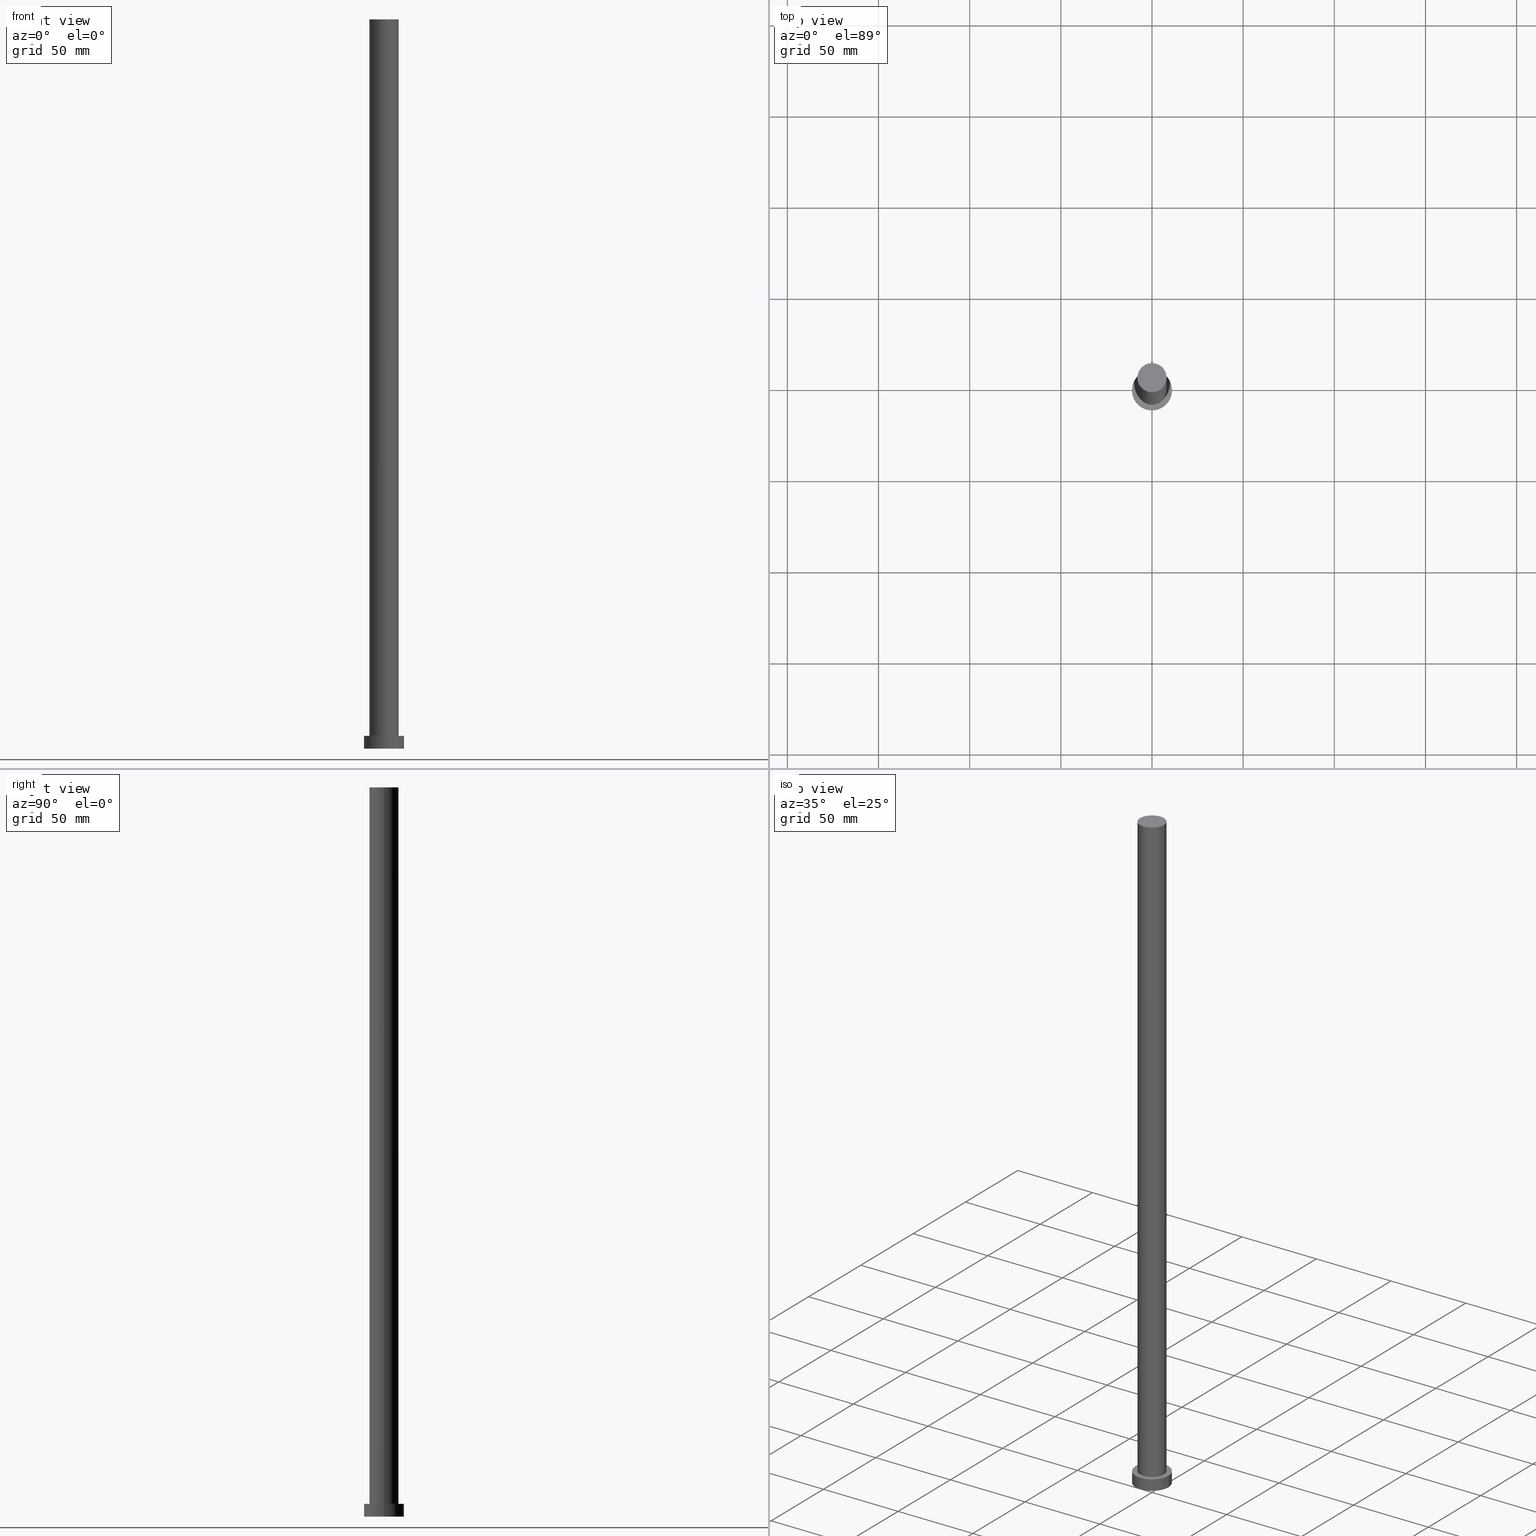
[diagram: canonical four-view strip — front | top / right | iso, engineering-drawing reading convention]
A machine part, canonical four-view strip (front | top / right | iso — engineering-drawing reading convention). The complete STEP part file that produces these views, byte-faithful:
ISO-10303-21;
HEADER;
FILE_DESCRIPTION (( 'STEP AP203' ),
    '1' );
FILE_NAME ('4e57.STEP',
    '2023-02-12T10:43:27',
    ( '' ),
    ( '' ),
    'SwSTEP 2.0',
    'SolidWorks 2019',
    '' );
FILE_SCHEMA (( 'CONFIG_CONTROL_DESIGN' ));
ENDSEC;

DATA;
#1 = DIRECTION ( 'NONE',  ( -0.000000000000000000, -0.000000000000000000, -1.000000000000000000 ) ) ;
#2 = MANIFOLD_SOLID_BREP ( 'P�idat vysunut�m3', #87 ) ;
#3 = CC_DESIGN_DATE_AND_TIME_ASSIGNMENT ( #65, #198, ( #118 ) ) ;
#4 = DIRECTION ( 'NONE',  ( 1.000000000000000000, 0.000000000000000000, -0.000000000000000000 ) ) ;
#5 = PLANE ( 'NONE',  #209 ) ;
#6 = FACE_OUTER_BOUND ( 'NONE', #170, .T. ) ;
#7 = FACE_OUTER_BOUND ( 'NONE', #68, .T. ) ;
#8 = APPROVAL_PERSON_ORGANIZATION ( #145, #28, #130 ) ;
#9 = PRODUCT_DEFINITION_FORMATION_WITH_SPECIFIED_SOURCE ( 'LIBOVOLN�', '', #194, .NOT_KNOWN. ) ;
#10 = VECTOR ( 'NONE', #137, 1000.000000000000000 ) ;
#11 = VERTEX_POINT ( 'NONE', #50 ) ;
#12 = CC_DESIGN_PERSON_AND_ORGANIZATION_ASSIGNMENT ( #160, #49, ( #9 ) ) ;
#13 = VERTEX_POINT ( 'NONE', #33 ) ;
#14 = PLANE ( 'NONE',  #219 ) ;
#15 = DIRECTION ( 'NONE',  ( 0.000000000000000000, 0.000000000000000000, 1.000000000000000000 ) ) ;
#16 = DIRECTION ( 'NONE',  ( -0.000000000000000000, -0.000000000000000000, -1.000000000000000000 ) ) ;
#17 = CIRCLE ( 'NONE', #159, 8.000000000000000000 ) ;
#18 = CYLINDRICAL_SURFACE ( 'NONE', #46, 11.00000000000000000 ) ;
#19 = APPLICATION_CONTEXT ( 'configuration controlled 3d designs of mechanical parts and assemblies' ) ;
#20 = DIRECTION ( 'NONE',  ( -0.000000000000000000, -0.000000000000000000, -1.000000000000000000 ) ) ;
#21 = ADVANCED_FACE ( 'NONE', ( #96, #182 ), #171, .T. ) ;
#22 = CARTESIAN_POINT ( 'NONE',  ( 0.000000000000000000, 0.000000000000000000, 400.0000000000000000 ) ) ;
#23 = DIRECTION ( 'NONE',  ( 1.000000000000000000, 0.000000000000000000, 0.000000000000000000 ) ) ;
#24 = ORIENTED_EDGE ( 'NONE', *, *, #75, .F. ) ;
#25 = APPROVAL_STATUS ( 'not_yet_approved' ) ;
#26 = CC_DESIGN_APPROVAL ( #79, ( #118 ) ) ;
#27 = ORIENTED_EDGE ( 'NONE', *, *, #162, .T. ) ;
#28 = APPROVAL ( #224, 'NEUR�EN�' ) ;
#29 = EDGE_LOOP ( 'NONE', ( #48, #73, #246, #90 ) ) ;
#30 = LOCAL_TIME ( 11, 43, 27.00000000000000000, #84 ) ;
#31 = CC_DESIGN_PERSON_AND_ORGANIZATION_ASSIGNMENT ( #248, #203, ( #9 ) ) ;
#32 = EDGE_CURVE ( 'NONE', #167, #109, #146, .T. ) ;
#33 = CARTESIAN_POINT ( 'NONE',  ( 11.00000000000000000, 1.347111479062088405E-15, 0.000000000000000000 ) ) ;
#34 = CARTESIAN_POINT ( 'NONE',  ( -11.00000000000000000, 0.000000000000000000, 7.000000000000000000 ) ) ;
#35 = AXIS2_PLACEMENT_3D ( 'NONE', #120, #101, #172 ) ;
#36 = DIRECTION ( 'NONE',  ( 0.000000000000000000, 0.000000000000000000, 1.000000000000000000 ) ) ;
#37 = CARTESIAN_POINT ( 'NONE',  ( 0.000000000000000000, 0.000000000000000000, 0.000000000000000000 ) ) ;
#38 = CARTESIAN_POINT ( 'NONE',  ( -11.00000000000000000, 0.000000000000000000, 0.000000000000000000 ) ) ;
#39 = CARTESIAN_POINT ( 'NONE',  ( 0.000000000000000000, 0.000000000000000000, 7.000000000000000000 ) ) ;
#40 = CALENDAR_DATE ( 2023, 12, 2 ) ;
#41 = PRODUCT_DEFINITION_SHAPE ( 'NONE', 'NONE',  #118 ) ;
#42 = PERSON_AND_ORGANIZATION ( #115, #142 ) ;
#43 =( NAMED_UNIT ( * ) SI_UNIT ( $, .STERADIAN. ) SOLID_ANGLE_UNIT ( ) );
#44 = CYLINDRICAL_SURFACE ( 'NONE', #91, 11.00000000000000000 ) ;
#45 = DATE_AND_TIME ( #94, #55 ) ;
#46 = AXIS2_PLACEMENT_3D ( 'NONE', #232, #20, #122 ) ;
#47 = APPROVAL_PERSON_ORGANIZATION ( #42, #140, #124 ) ;
#48 = ORIENTED_EDGE ( 'NONE', *, *, #151, .F. ) ;
#49 = PERSON_AND_ORGANIZATION_ROLE ( 'creator' ) ;
#50 = CARTESIAN_POINT ( 'NONE',  ( -8.000000000000000000, 0.000000000000000000, 7.000000000000000000 ) ) ;
#51 = AXIS2_PLACEMENT_3D ( 'NONE', #155, #1, #76 ) ;
#52 = CC_DESIGN_SECURITY_CLASSIFICATION ( #136, ( #9 ) ) ;
#53 = FACE_OUTER_BOUND ( 'NONE', #110, .T. ) ;
#54 = DIRECTION ( 'NONE',  ( 1.000000000000000000, 0.000000000000000000, 0.000000000000000000 ) ) ;
#55 = LOCAL_TIME ( 11, 43, 27.00000000000000000, #181 ) ;
#56 = CARTESIAN_POINT ( 'NONE',  ( 11.00000000000000000, 1.347111479062088405E-15, 7.000000000000000000 ) ) ;
#57 = CARTESIAN_POINT ( 'NONE',  ( 0.000000000000000000, 0.000000000000000000, 7.000000000000000000 ) ) ;
#58 = EDGE_CURVE ( 'NONE', #250, #114, #166, .T. ) ;
#59 = ADVANCED_FACE ( 'NONE', ( #117 ), #102, .T. ) ;
#60 = CARTESIAN_POINT ( 'NONE',  ( 0.000000000000000000, 0.000000000000000000, 0.000000000000000000 ) ) ;
#61 = PERSON_AND_ORGANIZATION_ROLE ( 'design_owner' ) ;
#62 = CARTESIAN_POINT ( 'NONE',  ( 8.000000000000000000, 9.797174393178825657E-16, 400.0000000000000000 ) ) ;
#63 = ORIENTED_EDGE ( 'NONE', *, *, #58, .T. ) ;
#64 = PERSON_AND_ORGANIZATION ( #115, #142 ) ;
#65 = DATE_AND_TIME ( #127, #83 ) ;
#66 = ADVANCED_BREP_SHAPE_REPRESENTATION ( '4e57', ( #2, #193 ), #100 ) ;
#67 = CARTESIAN_POINT ( 'NONE',  ( 0.000000000000000000, 0.000000000000000000, 7.000000000000000000 ) ) ;
#68 = EDGE_LOOP ( 'NONE', ( #113, #63 ) ) ;
#69 = VECTOR ( 'NONE', #99, 1000.000000000000000 ) ;
#70 = CC_DESIGN_APPROVAL ( #140, ( #9 ) ) ;
#71 = PERSON_AND_ORGANIZATION ( #115, #142 ) ;
#72 = ORIENTED_EDGE ( 'NONE', *, *, #175, .F. ) ;
#73 = ORIENTED_EDGE ( 'NONE', *, *, #180, .F. ) ;
#74 = DIRECTION ( 'NONE',  ( -1.000000000000000000, 0.000000000000000000, 0.000000000000000000 ) ) ;
#75 = EDGE_CURVE ( 'NONE', #11, #95, #207, .T. ) ;
#76 = DIRECTION ( 'NONE',  ( -1.000000000000000000, 0.000000000000000000, 0.000000000000000000 ) ) ;
#77 = DIRECTION ( 'NONE',  ( 1.000000000000000000, 0.000000000000000000, 0.000000000000000000 ) ) ;
#78 = DIRECTION ( 'NONE',  ( 0.000000000000000000, 0.000000000000000000, 1.000000000000000000 ) ) ;
#79 = APPROVAL ( #163, 'NEUR�EN�' ) ;
#80 = CARTESIAN_POINT ( 'NONE',  ( -8.000000000000000000, 0.000000000000000000, 400.0000000000000000 ) ) ;
#81 = APPROVAL_ROLE ( '' ) ;
#82 = AXIS2_PLACEMENT_3D ( 'NONE', #119, #15, #231 ) ;
#83 = LOCAL_TIME ( 11, 43, 27.00000000000000000, #143 ) ;
#84 = COORDINATED_UNIVERSAL_TIME_OFFSET ( 1, 0, .AHEAD. ) ;
#85 = CARTESIAN_POINT ( 'NONE',  ( 0.000000000000000000, 0.000000000000000000, 0.000000000000000000 ) ) ;
#86 = APPLICATION_PROTOCOL_DEFINITION ( 'international standard', 'config_control_design', 1994, #97 ) ;
#87 = CLOSED_SHELL ( 'NONE', ( #158, #242, #126, #21, #233, #59, #243 ) ) ;
#88 = LOCAL_TIME ( 11, 43, 27.00000000000000000, #241 ) ;
#89 = CC_DESIGN_PERSON_AND_ORGANIZATION_ASSIGNMENT ( #177, #61, ( #194 ) ) ;
#90 = ORIENTED_EDGE ( 'NONE', *, *, #183, .T. ) ;
#91 = AXIS2_PLACEMENT_3D ( 'NONE', #216, #199, #197 ) ;
#92 = CIRCLE ( 'NONE', #236, 11.00000000000000000 ) ;
#93 = UNCERTAINTY_MEASURE_WITH_UNIT (LENGTH_MEASURE( 1.000000000000000082E-05 ), #195, 'distance_accuracy_value', 'NONE');
#94 = CALENDAR_DATE ( 2023, 12, 2 ) ;
#95 = VERTEX_POINT ( 'NONE', #135 ) ;
#96 = FACE_BOUND ( 'NONE', #204, .T. ) ;
#97 = APPLICATION_CONTEXT ( 'configuration controlled 3d designs of mechanical parts and assemblies' ) ;
#98 = DIRECTION ( 'NONE',  ( 1.000000000000000000, 0.000000000000000000, 0.000000000000000000 ) ) ;
#99 = DIRECTION ( 'NONE',  ( -0.000000000000000000, -0.000000000000000000, -1.000000000000000000 ) ) ;
#100 =( GEOMETRIC_REPRESENTATION_CONTEXT ( 3 ) GLOBAL_UNCERTAINTY_ASSIGNED_CONTEXT ( ( #93 ) ) GLOBAL_UNIT_ASSIGNED_CONTEXT ( ( #195, #222, #43 ) ) REPRESENTATION_CONTEXT ( 'NONE', 'WORKASPACE' ) );
#101 = DIRECTION ( 'NONE',  ( 0.000000000000000000, 0.000000000000000000, 1.000000000000000000 ) ) ;
#102 = CYLINDRICAL_SURFACE ( 'NONE', #51, 8.000000000000000000 ) ;
#103 = PERSON_AND_ORGANIZATION ( #115, #142 ) ;
#104 = CIRCLE ( 'NONE', #200, 11.00000000000000000 ) ;
#105 = DIRECTION ( 'NONE',  ( 0.000000000000000000, 0.000000000000000000, 1.000000000000000000 ) ) ;
#106 = EDGE_LOOP ( 'NONE', ( #131, #129, #255, #202 ) ) ;
#107 = CC_DESIGN_PERSON_AND_ORGANIZATION_ASSIGNMENT ( #71, #225, ( #136 ) ) ;
#108 = DATE_TIME_ROLE ( 'classification_date' ) ;
#109 = VERTEX_POINT ( 'NONE', #154 ) ;
#110 = EDGE_LOOP ( 'NONE', ( #178, #226 ) ) ;
#111 = APPROVAL_DATE_TIME ( #45, #28 ) ;
#112 = ORIENTED_EDGE ( 'NONE', *, *, #32, .F. ) ;
#113 = ORIENTED_EDGE ( 'NONE', *, *, #150, .T. ) ;
#114 = VERTEX_POINT ( 'NONE', #80 ) ;
#115 = PERSON ( 'NEUR�EN�', 'NEUR�EN�', 'NEUR�EN�', ('NEUR�EN�'), ('NEUR�EN�'), ('NEUR�EN�') ) ;
#116 = LINE ( 'NONE', #56, #69 ) ;
#117 = FACE_OUTER_BOUND ( 'NONE', #149, .T. ) ;
#118 = PRODUCT_DEFINITION ( 'NEZN�M�', '', #9, #186 ) ;
#119 = CARTESIAN_POINT ( 'NONE',  ( 0.000000000000000000, 0.000000000000000000, 400.0000000000000000 ) ) ;
#120 = CARTESIAN_POINT ( 'NONE',  ( 0.000000000000000000, 0.000000000000000000, 400.0000000000000000 ) ) ;
#121 = CC_DESIGN_APPROVAL ( #28, ( #136 ) ) ;
#122 = DIRECTION ( 'NONE',  ( -1.000000000000000000, 0.000000000000000000, 0.000000000000000000 ) ) ;
#123 = APPROVAL_DATE_TIME ( #244, #79 ) ;
#124 = APPROVAL_ROLE ( '' ) ;
#125 = ORIENTED_EDGE ( 'NONE', *, *, #229, .F. ) ;
#126 = ADVANCED_FACE ( 'NONE', ( #153 ), #18, .T. ) ;
#127 = CALENDAR_DATE ( 2023, 12, 2 ) ;
#128 = COORDINATED_UNIVERSAL_TIME_OFFSET ( 1, 0, .AHEAD. ) ;
#129 = ORIENTED_EDGE ( 'NONE', *, *, #229, .T. ) ;
#130 = APPROVAL_ROLE ( '' ) ;
#131 = ORIENTED_EDGE ( 'NONE', *, *, #58, .F. ) ;
#132 = CIRCLE ( 'NONE', #211, 11.00000000000000000 ) ;
#133 = EDGE_CURVE ( 'NONE', #13, #206, #92, .T. ) ;
#134 = CARTESIAN_POINT ( 'NONE',  ( 8.000000000000000000, 9.797174393178825657E-16, 400.0000000000000000 ) ) ;
#135 = CARTESIAN_POINT ( 'NONE',  ( 8.000000000000000000, 9.797174393178825657E-16, 7.000000000000000000 ) ) ;
#136 = SECURITY_CLASSIFICATION ( '', '', #245 ) ;
#137 = DIRECTION ( 'NONE',  ( -0.000000000000000000, -0.000000000000000000, -1.000000000000000000 ) ) ;
#138 = DIRECTION ( 'NONE',  ( 0.000000000000000000, 0.000000000000000000, 1.000000000000000000 ) ) ;
#139 = LINE ( 'NONE', #34, #237 ) ;
#140 = APPROVAL ( #25, 'NEUR�EN�' ) ;
#141 = DATE_AND_TIME ( #144, #30 ) ;
#142 = ORGANIZATION ( 'NEUR�EN�', 'NEUR�EN�', '' ) ;
#143 = COORDINATED_UNIVERSAL_TIME_OFFSET ( 1, 0, .AHEAD. ) ;
#144 = CALENDAR_DATE ( 2023, 12, 2 ) ;
#145 = PERSON_AND_ORGANIZATION ( #115, #142 ) ;
#146 = CIRCLE ( 'NONE', #164, 11.00000000000000000 ) ;
#147 = ORIENTED_EDGE ( 'NONE', *, *, #32, .T. ) ;
#148 = ORIENTED_EDGE ( 'NONE', *, *, #180, .T. ) ;
#149 = EDGE_LOOP ( 'NONE', ( #125, #249, #27, #157 ) ) ;
#150 = EDGE_CURVE ( 'NONE', #114, #250, #187, .T. ) ;
#151 = EDGE_CURVE ( 'NONE', #167, #13, #116, .T. ) ;
#152 = AXIS2_PLACEMENT_3D ( 'NONE', #67, #223, #252 ) ;
#153 = FACE_OUTER_BOUND ( 'NONE', #29, .T. ) ;
#154 = CARTESIAN_POINT ( 'NONE',  ( -11.00000000000000000, 0.000000000000000000, 7.000000000000000000 ) ) ;
#155 = CARTESIAN_POINT ( 'NONE',  ( 0.000000000000000000, 0.000000000000000000, 400.0000000000000000 ) ) ;
#156 = DIRECTION ( 'NONE',  ( 0.000000000000000000, 0.000000000000000000, 1.000000000000000000 ) ) ;
#157 = ORIENTED_EDGE ( 'NONE', *, *, #75, .T. ) ;
#158 = ADVANCED_FACE ( 'NONE', ( #190 ), #251, .T. ) ;
#159 = AXIS2_PLACEMENT_3D ( 'NONE', #57, #138, #214 ) ;
#160 = PERSON_AND_ORGANIZATION ( #115, #142 ) ;
#161 = DIRECTION ( 'NONE',  ( 1.000000000000000000, 0.000000000000000000, -0.000000000000000000 ) ) ;
#162 = EDGE_CURVE ( 'NONE', #114, #11, #189, .T. ) ;
#163 = APPROVAL_STATUS ( 'not_yet_approved' ) ;
#164 = AXIS2_PLACEMENT_3D ( 'NONE', #192, #78, #77 ) ;
#165 = ORIENTED_EDGE ( 'NONE', *, *, #151, .T. ) ;
#166 = CIRCLE ( 'NONE', #35, 8.000000000000000000 ) ;
#167 = VERTEX_POINT ( 'NONE', #235 ) ;
#168 = CC_DESIGN_DATE_AND_TIME_ASSIGNMENT ( #201, #108, ( #136 ) ) ;
#169 = ORIENTED_EDGE ( 'NONE', *, *, #191, .F. ) ;
#170 = EDGE_LOOP ( 'NONE', ( #112, #165, #185, #72 ) ) ;
#171 = PLANE ( 'NONE',  #152 ) ;
#172 = DIRECTION ( 'NONE',  ( 1.000000000000000000, 0.000000000000000000, 0.000000000000000000 ) ) ;
#173 = DIRECTION ( 'NONE',  ( 1.000000000000000000, 0.000000000000000000, 0.000000000000000000 ) ) ;
#174 = DIRECTION ( 'NONE',  ( 0.000000000000000000, 0.000000000000000000, 1.000000000000000000 ) ) ;
#175 = EDGE_CURVE ( 'NONE', #109, #206, #139, .T. ) ;
#176 = APPROVAL_DATE_TIME ( #141, #140 ) ;
#177 = PERSON_AND_ORGANIZATION ( #115, #142 ) ;
#178 = ORIENTED_EDGE ( 'NONE', *, *, #183, .F. ) ;
#179 = LOCAL_TIME ( 11, 43, 27.00000000000000000, #128 ) ;
#180 = EDGE_CURVE ( 'NONE', #109, #167, #132, .T. ) ;
#181 = COORDINATED_UNIVERSAL_TIME_OFFSET ( 1, 0, .AHEAD. ) ;
#182 = FACE_OUTER_BOUND ( 'NONE', #228, .T. ) ;
#183 = EDGE_CURVE ( 'NONE', #206, #13, #104, .T. ) ;
#184 = AXIS2_PLACEMENT_3D ( 'NONE', #212, #16, #74 ) ;
#185 = ORIENTED_EDGE ( 'NONE', *, *, #133, .T. ) ;
#186 = DESIGN_CONTEXT ( 'detailed design', #97, 'design' ) ;
#187 = CIRCLE ( 'NONE', #82, 8.000000000000000000 ) ;
#188 = DIRECTION ( 'NONE',  ( -0.000000000000000000, -0.000000000000000000, -1.000000000000000000 ) ) ;
#189 = LINE ( 'NONE', #254, #10 ) ;
#190 = FACE_OUTER_BOUND ( 'NONE', #106, .T. ) ;
#191 = EDGE_CURVE ( 'NONE', #95, #11, #17, .T. ) ;
#192 = CARTESIAN_POINT ( 'NONE',  ( 0.000000000000000000, 0.000000000000000000, 7.000000000000000000 ) ) ;
#193 = AXIS2_PLACEMENT_3D ( 'NONE', #220, #196, #23 ) ;
#194 = PRODUCT ( '4e57', '4e57', '', ( #218 ) ) ;
#195 =( LENGTH_UNIT ( ) NAMED_UNIT ( * ) SI_UNIT ( .MILLI., .METRE. ) );
#196 = DIRECTION ( 'NONE',  ( 0.000000000000000000, 0.000000000000000000, 1.000000000000000000 ) ) ;
#197 = DIRECTION ( 'NONE',  ( -1.000000000000000000, 0.000000000000000000, 0.000000000000000000 ) ) ;
#198 = DATE_TIME_ROLE ( 'creation_date' ) ;
#199 = DIRECTION ( 'NONE',  ( -0.000000000000000000, -0.000000000000000000, -1.000000000000000000 ) ) ;
#200 = AXIS2_PLACEMENT_3D ( 'NONE', #37, #156, #234 ) ;
#201 = DATE_AND_TIME ( #208, #179 ) ;
#202 = ORIENTED_EDGE ( 'NONE', *, *, #162, .F. ) ;
#203 = PERSON_AND_ORGANIZATION_ROLE ( 'design_supplier' ) ;
#204 = EDGE_LOOP ( 'NONE', ( #24, #169 ) ) ;
#205 = SHAPE_DEFINITION_REPRESENTATION ( #41, #66 ) ;
#206 = VERTEX_POINT ( 'NONE', #38 ) ;
#207 = CIRCLE ( 'NONE', #227, 8.000000000000000000 ) ;
#208 = CALENDAR_DATE ( 2023, 12, 2 ) ;
#209 = AXIS2_PLACEMENT_3D ( 'NONE', #22, #105, #161 ) ;
#210 = DIRECTION ( 'NONE',  ( 0.000000000000000000, 0.000000000000000000, 1.000000000000000000 ) ) ;
#211 = AXIS2_PLACEMENT_3D ( 'NONE', #213, #36, #173 ) ;
#212 = CARTESIAN_POINT ( 'NONE',  ( 0.000000000000000000, 0.000000000000000000, 400.0000000000000000 ) ) ;
#213 = CARTESIAN_POINT ( 'NONE',  ( 0.000000000000000000, 0.000000000000000000, 7.000000000000000000 ) ) ;
#214 = DIRECTION ( 'NONE',  ( 1.000000000000000000, 0.000000000000000000, 0.000000000000000000 ) ) ;
#215 = LINE ( 'NONE', #134, #247 ) ;
#216 = CARTESIAN_POINT ( 'NONE',  ( 0.000000000000000000, 0.000000000000000000, 7.000000000000000000 ) ) ;
#217 = APPLICATION_PROTOCOL_DEFINITION ( 'international standard', 'config_control_design', 1994, #19 ) ;
#218 = MECHANICAL_CONTEXT ( 'NONE', #19, 'mechanical' ) ;
#219 = AXIS2_PLACEMENT_3D ( 'NONE', #85, #239, #4 ) ;
#220 = CARTESIAN_POINT ( 'NONE',  ( 0.000000000000000000, 0.000000000000000000, 0.000000000000000000 ) ) ;
#221 = CC_DESIGN_PERSON_AND_ORGANIZATION_ASSIGNMENT ( #64, #240, ( #118 ) ) ;
#222 =( NAMED_UNIT ( * ) PLANE_ANGLE_UNIT ( ) SI_UNIT ( $, .RADIAN. ) );
#223 = DIRECTION ( 'NONE',  ( 0.000000000000000000, 0.000000000000000000, 1.000000000000000000 ) ) ;
#224 = APPROVAL_STATUS ( 'not_yet_approved' ) ;
#225 = PERSON_AND_ORGANIZATION_ROLE ( 'classification_officer' ) ;
#226 = ORIENTED_EDGE ( 'NONE', *, *, #133, .F. ) ;
#227 = AXIS2_PLACEMENT_3D ( 'NONE', #39, #210, #98 ) ;
#228 = EDGE_LOOP ( 'NONE', ( #148, #147 ) ) ;
#229 = EDGE_CURVE ( 'NONE', #250, #95, #215, .T. ) ;
#230 = DIRECTION ( 'NONE',  ( -0.000000000000000000, -0.000000000000000000, -1.000000000000000000 ) ) ;
#231 = DIRECTION ( 'NONE',  ( 1.000000000000000000, 0.000000000000000000, 0.000000000000000000 ) ) ;
#232 = CARTESIAN_POINT ( 'NONE',  ( 0.000000000000000000, 0.000000000000000000, 7.000000000000000000 ) ) ;
#233 = ADVANCED_FACE ( 'NONE', ( #53 ), #14, .F. ) ;
#234 = DIRECTION ( 'NONE',  ( 1.000000000000000000, 0.000000000000000000, 0.000000000000000000 ) ) ;
#235 = CARTESIAN_POINT ( 'NONE',  ( 11.00000000000000000, 1.347111479062088405E-15, 7.000000000000000000 ) ) ;
#236 = AXIS2_PLACEMENT_3D ( 'NONE', #60, #174, #54 ) ;
#237 = VECTOR ( 'NONE', #188, 1000.000000000000000 ) ;
#238 = PRODUCT_RELATED_PRODUCT_CATEGORY ( 'detail', '', ( #194 ) ) ;
#239 = DIRECTION ( 'NONE',  ( 0.000000000000000000, 0.000000000000000000, 1.000000000000000000 ) ) ;
#240 = PERSON_AND_ORGANIZATION_ROLE ( 'creator' ) ;
#241 = COORDINATED_UNIVERSAL_TIME_OFFSET ( 1, 0, .AHEAD. ) ;
#242 = ADVANCED_FACE ( 'NONE', ( #6 ), #44, .T. ) ;
#243 = ADVANCED_FACE ( 'NONE', ( #7 ), #5, .T. ) ;
#244 = DATE_AND_TIME ( #40, #88 ) ;
#245 = SECURITY_CLASSIFICATION_LEVEL ( 'unclassified' ) ;
#246 = ORIENTED_EDGE ( 'NONE', *, *, #175, .T. ) ;
#247 = VECTOR ( 'NONE', #230, 1000.000000000000000 ) ;
#248 = PERSON_AND_ORGANIZATION ( #115, #142 ) ;
#249 = ORIENTED_EDGE ( 'NONE', *, *, #150, .F. ) ;
#250 = VERTEX_POINT ( 'NONE', #62 ) ;
#251 = CYLINDRICAL_SURFACE ( 'NONE', #184, 8.000000000000000000 ) ;
#252 = DIRECTION ( 'NONE',  ( 1.000000000000000000, 0.000000000000000000, -0.000000000000000000 ) ) ;
#253 = APPROVAL_PERSON_ORGANIZATION ( #103, #79, #81 ) ;
#254 = CARTESIAN_POINT ( 'NONE',  ( -8.000000000000000000, 0.000000000000000000, 400.0000000000000000 ) ) ;
#255 = ORIENTED_EDGE ( 'NONE', *, *, #191, .T. ) ;
ENDSEC;
END-ISO-10303-21;
